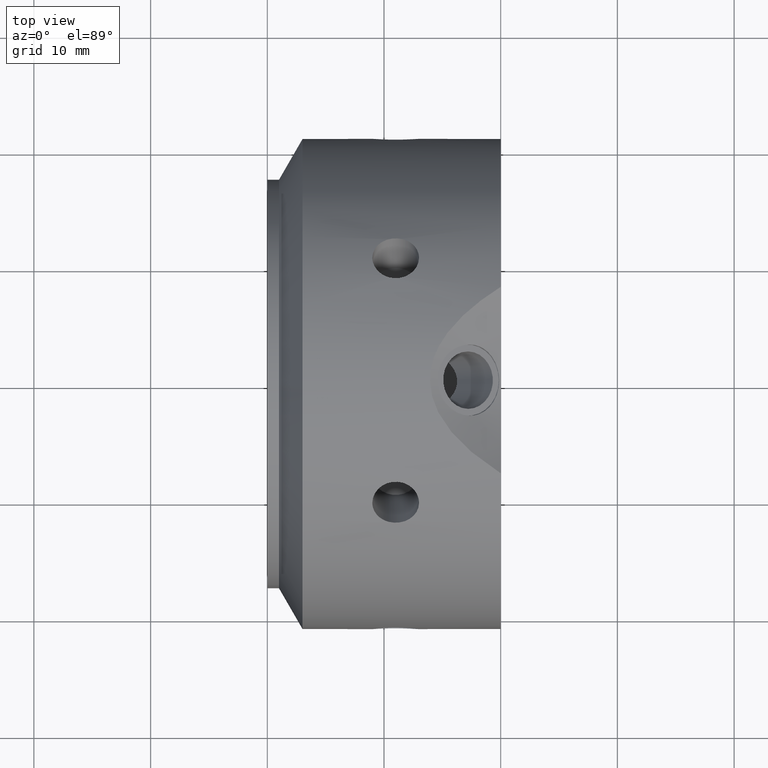
[diagram: clean part render]
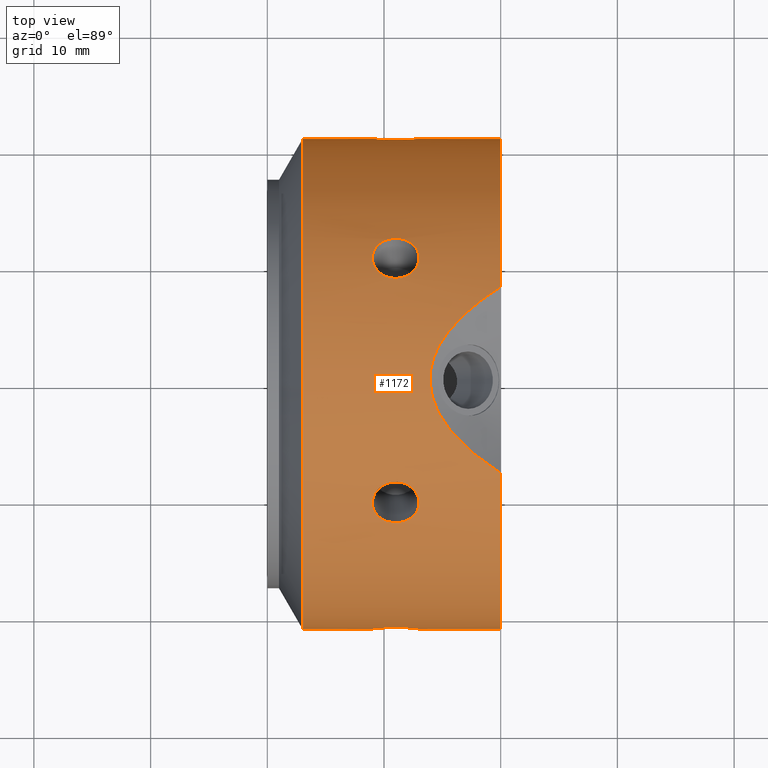
[diagram: same view with one face highlighted and labeled with its STEP entity id]
A machine part, top view. The second image highlights one B-rep face of the part: STEP entity #1172.
In plain terms, the highlighted cylindrical surface (bore or boss wall) has radius 21 mm, axis along (1, 0, 0).
Its self-contained STEP definition (entity closure, byte-faithful):
#90=CARTESIAN_POINT('',(9.000000000000002,10.500000000000014,18.186533479473198));
#91=VERTEX_POINT('',#90);
#92=CARTESIAN_POINT('',(13.0,10.500000000000018,18.186533479473198));
#93=VERTEX_POINT('',#92);
#94=CARTESIAN_POINT('',(9.0,10.500000000000016,18.186533479473198));
#95=CARTESIAN_POINT('',(9.0,10.717621442878064,18.06088968084612));
#96=CARTESIAN_POINT('',(9.050251048169601,10.947172488924004,17.922616635046939));
#97=CARTESIAN_POINT('',(9.254405905243905,11.364888168896423,17.660693345922247));
#98=CARTESIAN_POINT('',(9.408301305668548,11.553191491278197,17.537257791636765));
#99=CARTESIAN_POINT('',(9.763272066160816,11.848625504550405,17.339022991923677));
#100=CARTESIAN_POINT('',(9.988065085971465,11.975516503749708,17.25101462264989));
#101=CARTESIAN_POINT('',(10.480778392240556,12.143303375181798,17.133320875475675));
#102=CARTESIAN_POINT('',(10.74871169968258,12.18432328775233,17.103866990231651));
#103=CARTESIAN_POINT('',(11.251288300317421,12.184323287752331,17.103866990231651));
#104=CARTESIAN_POINT('',(11.519221607759446,12.143303375181798,17.133320875475675));
#105=CARTESIAN_POINT('',(12.011934914028537,11.975516503749706,17.25101462264989));
#106=CARTESIAN_POINT('',(12.236727933839187,11.848625504550409,17.339022991923674));
#107=CARTESIAN_POINT('',(12.591698694331455,11.553191491278199,17.537257791636765));
#108=CARTESIAN_POINT('',(12.745594094756097,11.36488816889643,17.660693345922244));
#109=CARTESIAN_POINT('',(12.949748951830403,10.947172488924007,17.922616635046936));
#110=CARTESIAN_POINT('',(13.0,10.717621442878064,18.06088968084612));
#111=CARTESIAN_POINT('',(13.0,10.500000000000016,18.186533479473198));
#112=B_SPLINE_CURVE_WITH_KNOTS('',3,(#94,#95,#96,#97,#98,#99,#100,#101,#102,#103,#104,#105,#106,#107,#108,#109,#110,#111),.UNSPECIFIED.,.F.,.U.,(4,2,2,2,2,2,2,2,4),(0.301545538542943,0.376931817719189,0.452318096895434,0.52770458699066,0.603091077085887,0.678477567181113,0.753864057276339,0.829250336452585,0.90463661562883),.UNSPECIFIED.);
#113=EDGE_CURVE('',#91,#93,#112,.T.);
#115=CARTESIAN_POINT('',(13.0,10.500000000000016,18.186533479473198));
#116=CARTESIAN_POINT('',(13.0,10.282378557121968,18.312177278100272));
#117=CARTESIAN_POINT('',(12.949748951830403,10.047855063778259,18.441837792541754));
#118=CARTESIAN_POINT('',(12.745594094756097,9.612165001567291,18.672628538394619));
#119=CARTESIAN_POINT('',(12.591698694331455,9.411115014634964,18.773986222051505));
#120=CARTESIAN_POINT('',(12.236727933839187,9.091721635533203,18.930722182830682));
#121=CARTESIAN_POINT('',(12.011934914028533,8.952058652396817,18.996608827011976));
#122=CARTESIAN_POINT('',(11.519221607759446,8.766239441761321,19.083069646506569));
#123=CARTESIAN_POINT('',(11.251288300317421,8.720221672614576,19.103866990231655));
#124=CARTESIAN_POINT('',(11.0,8.720221672614576,19.103866990231655));
#125=CARTESIAN_POINT('',(10.74871169968258,8.720221672614576,19.103866990231655));
#126=CARTESIAN_POINT('',(10.480778392240556,8.76623944176132,19.083069646506573));
#127=CARTESIAN_POINT('',(9.988065085971469,8.952058652396817,18.996608827011979));
#128=CARTESIAN_POINT('',(9.763272066160816,9.091721635533203,18.930722182830682));
#129=CARTESIAN_POINT('',(9.408301305668548,9.411115014634962,18.773986222051505));
#130=CARTESIAN_POINT('',(9.254405905243905,9.612165001567291,18.672628538394619));
#131=CARTESIAN_POINT('',(9.050251048169603,10.047855063778259,18.441837792541754));
#132=CARTESIAN_POINT('',(9.0,10.282378557121971,18.312177278100272));
#133=CARTESIAN_POINT('',(9.0,10.500000000000021,18.186533479473194));
#134=B_SPLINE_CURVE_WITH_KNOTS('',3,(#115,#116,#117,#118,#119,#120,#121,#122,#123,#124,#125,#126,#127,#128,#129,#130,#131,#132,#133),.UNSPECIFIED.,.F.,.U.,(4,2,2,2,3,2,2,2,4),(0.90463661562883,0.980022894805076,1.055409173981321,1.130795664076548,1.206182154171774,1.281568644267,1.356955134362226,1.432341413538472,1.507727692714717),.UNSPECIFIED.);
#135=EDGE_CURVE('',#93,#91,#134,.T.);
#202=CARTESIAN_POINT('',(9.000000000000002,20.999999999999996,-1.398881E-014));
#203=VERTEX_POINT('',#202);
#204=CARTESIAN_POINT('',(13.0,20.999999999999996,-1.554312E-014));
#205=VERTEX_POINT('',#204);
#206=CARTESIAN_POINT('',(9.000000000000002,20.999999999999996,-1.693090E-014));
#207=CARTESIAN_POINT('',(9.000000000000002,20.999999999999996,-0.251287597254168));
#208=CARTESIAN_POINT('',(9.050251048169601,20.995027552702222,-0.519221157494833));
#209=CARTESIAN_POINT('',(9.254405905243905,20.977053170463677,-1.011935192472388));
#210=CARTESIAN_POINT('',(9.408301305668548,20.964306505913122,-1.236728430414754));
#211=CARTESIAN_POINT('',(9.763272066160816,20.940347140083571,-1.591699190907022));
#212=CARTESIAN_POINT('',(9.988065085971467,20.927575156146482,-1.745594204362096));
#213=CARTESIAN_POINT('',(10.480778392240556,20.909542816943073,-1.949748771030906));
#214=CARTESIAN_POINT('',(10.74871169968258,20.904544960366866,-2.000000000000017));
#215=CARTESIAN_POINT('',(11.251288300317421,20.904544960366866,-2.000000000000017));
#216=CARTESIAN_POINT('',(11.519221607759446,20.909542816943073,-1.949748771030906));
#217=CARTESIAN_POINT('',(12.011934914028535,20.927575156146482,-1.745594204362096));
#218=CARTESIAN_POINT('',(12.236727933839187,20.940347140083571,-1.591699190907022));
#219=CARTESIAN_POINT('',(12.591698694331455,20.964306505913122,-1.236728430414755));
#220=CARTESIAN_POINT('',(12.745594094756097,20.977053170463677,-1.011935192472388));
#221=CARTESIAN_POINT('',(12.949748951830403,20.995027552702222,-0.519221157494834));
#222=CARTESIAN_POINT('',(13.0,20.999999999999996,-0.25128759725417));
#223=CARTESIAN_POINT('',(13.0,20.999999999999996,-1.790235E-014));
#224=B_SPLINE_CURVE_WITH_KNOTS('',3,(#206,#207,#208,#209,#210,#211,#212,#213,#214,#215,#216,#217,#218,#219,#220,#221,#222,#223),.UNSPECIFIED.,.F.,.U.,(4,2,2,2,2,2,2,2,4),(0.301545538542943,0.376931817719189,0.452318096895434,0.527704586990661,0.603091077085887,0.678477567181113,0.753864057276339,0.829250336452585,0.90463661562883),.UNSPECIFIED.);
#225=EDGE_CURVE('',#203,#205,#224,.T.);
#227=CARTESIAN_POINT('',(13.0,20.999999999999996,-1.769418E-014));
#228=CARTESIAN_POINT('',(13.0,20.999999999999996,0.251287597254134));
#229=CARTESIAN_POINT('',(12.949748951830401,20.995027552702222,0.519221157494798));
#230=CARTESIAN_POINT('',(12.745594094756097,20.977053170463677,1.011935192472352));
#231=CARTESIAN_POINT('',(12.591698694331455,20.964306505913122,1.236728430414719));
#232=CARTESIAN_POINT('',(12.236727933839187,20.940347140083571,1.591699190906987));
#233=CARTESIAN_POINT('',(12.011934914028533,20.927575156146482,1.745594204362062));
#234=CARTESIAN_POINT('',(11.519221607759446,20.909542816943073,1.949748771030871));
#235=CARTESIAN_POINT('',(11.251288300317421,20.904544960366866,1.999999999999983));
#236=CARTESIAN_POINT('',(11.0,20.904544960366866,1.999999999999983));
#237=CARTESIAN_POINT('',(10.74871169968258,20.904544960366866,1.999999999999983));
#238=CARTESIAN_POINT('',(10.480778392240556,20.909542816943073,1.949748771030871));
#239=CARTESIAN_POINT('',(9.988065085971467,20.927575156146482,1.745594204362062));
#240=CARTESIAN_POINT('',(9.763272066160816,20.940347140083571,1.591699190906987));
#241=CARTESIAN_POINT('',(9.408301305668548,20.964306505913122,1.23672843041472));
#242=CARTESIAN_POINT('',(9.254405905243907,20.977053170463677,1.011935192472354));
#243=CARTESIAN_POINT('',(9.050251048169601,20.995027552702222,0.519221157494799));
#244=CARTESIAN_POINT('',(9.000000000000002,20.999999999999996,0.251287597254135));
#245=CARTESIAN_POINT('',(9.000000000000002,20.999999999999996,-1.693090E-014));
#246=B_SPLINE_CURVE_WITH_KNOTS('',3,(#227,#228,#229,#230,#231,#232,#233,#234,#235,#236,#237,#238,#239,#240,#241,#242,#243,#244,#245),.UNSPECIFIED.,.F.,.U.,(4,2,2,2,3,2,2,2,4),(0.90463661562883,0.980022894805076,1.055409173981321,1.130795664076548,1.206182154171774,1.281568644267,1.356955134362226,1.432341413538472,1.507727692714717),.UNSPECIFIED.);
#247=EDGE_CURVE('',#205,#203,#246,.T.);
#314=CARTESIAN_POINT('',(9.000000000000002,10.499999999999991,-18.186533479473212));
#315=VERTEX_POINT('',#314);
#316=CARTESIAN_POINT('',(13.0,10.499999999999993,-18.186533479473212));
#317=VERTEX_POINT('',#316);
#318=CARTESIAN_POINT('',(9.000000000000002,10.499999999999991,-18.186533479473212));
#319=CARTESIAN_POINT('',(9.000000000000002,10.282378557121943,-18.312177278100286));
#320=CARTESIAN_POINT('',(9.050251048169603,10.047855063778231,-18.441837792541769));
#321=CARTESIAN_POINT('',(9.254405905243905,9.612165001567263,-18.67262853839463));
#322=CARTESIAN_POINT('',(9.408301305668548,9.411115014634937,-18.773986222051516));
#323=CARTESIAN_POINT('',(9.763272066160816,9.091721635533176,-18.930722182830696));
#324=CARTESIAN_POINT('',(9.988065085971465,8.95205865239679,-18.996608827011986));
#325=CARTESIAN_POINT('',(10.480778392240556,8.766239441761293,-19.08306964650658));
#326=CARTESIAN_POINT('',(10.74871169968258,8.720221672614549,-19.103866990231673));
#327=CARTESIAN_POINT('',(11.251288300317421,8.720221672614549,-19.103866990231673));
#328=CARTESIAN_POINT('',(11.519221607759446,8.766239441761293,-19.08306964650658));
#329=CARTESIAN_POINT('',(12.011934914028537,8.95205865239679,-18.996608827011986));
#330=CARTESIAN_POINT('',(12.236727933839187,9.091721635533176,-18.930722182830696));
#331=CARTESIAN_POINT('',(12.591698694331455,9.411115014634936,-18.773986222051519));
#332=CARTESIAN_POINT('',(12.745594094756097,9.612165001567261,-18.672628538394633));
#333=CARTESIAN_POINT('',(12.949748951830403,10.047855063778231,-18.441837792541769));
#334=CARTESIAN_POINT('',(13.0,10.282378557121943,-18.312177278100286));
#335=CARTESIAN_POINT('',(13.0,10.499999999999991,-18.186533479473212));
#336=B_SPLINE_CURVE_WITH_KNOTS('',3,(#318,#319,#320,#321,#322,#323,#324,#325,#326,#327,#328,#329,#330,#331,#332,#333,#334,#335),.UNSPECIFIED.,.F.,.U.,(4,2,2,2,2,2,2,2,4),(0.301545538542943,0.376931817719189,0.452318096895434,0.52770458699066,0.603091077085887,0.678477567181113,0.753864057276339,0.829250336452585,0.90463661562883),.UNSPECIFIED.);
#337=EDGE_CURVE('',#315,#317,#336,.T.);
#339=CARTESIAN_POINT('',(13.0,10.499999999999989,-18.186533479473212));
#340=CARTESIAN_POINT('',(13.0,10.717621442878038,-18.060889680846135));
#341=CARTESIAN_POINT('',(12.949748951830403,10.947172488923977,-17.922616635046957));
#342=CARTESIAN_POINT('',(12.745594094756097,11.364888168896401,-17.660693345922262));
#343=CARTESIAN_POINT('',(12.591698694331455,11.553191491278172,-17.537257791636783));
#344=CARTESIAN_POINT('',(12.236727933839187,11.848625504550384,-17.339022991923695));
#345=CARTESIAN_POINT('',(12.011934914028535,11.975516503749679,-17.251014622649908));
#346=CARTESIAN_POINT('',(11.519221607759448,12.14330337518177,-17.133320875475697));
#347=CARTESIAN_POINT('',(11.251288300317421,12.184323287752303,-17.103866990231673));
#348=CARTESIAN_POINT('',(11.0,12.184323287752303,-17.103866990231673));
#349=CARTESIAN_POINT('',(10.74871169968258,12.184323287752303,-17.103866990231673));
#350=CARTESIAN_POINT('',(10.480778392240556,12.143303375181771,-17.133320875475697));
#351=CARTESIAN_POINT('',(9.988065085971467,11.975516503749681,-17.251014622649908));
#352=CARTESIAN_POINT('',(9.763272066160816,11.848625504550384,-17.339022991923695));
#353=CARTESIAN_POINT('',(9.408301305668548,11.553191491278172,-17.537257791636783));
#354=CARTESIAN_POINT('',(9.254405905243907,11.364888168896403,-17.660693345922262));
#355=CARTESIAN_POINT('',(9.050251048169601,10.947172488923979,-17.922616635046957));
#356=CARTESIAN_POINT('',(9.000000000000002,10.717621442878041,-18.060889680846138));
#357=CARTESIAN_POINT('',(9.000000000000002,10.499999999999991,-18.186533479473212));
#358=B_SPLINE_CURVE_WITH_KNOTS('',3,(#339,#340,#341,#342,#343,#344,#345,#346,#347,#348,#349,#350,#351,#352,#353,#354,#355,#356,#357),.UNSPECIFIED.,.F.,.U.,(4,2,2,2,3,2,2,2,4),(0.90463661562883,0.980022894805076,1.055409173981321,1.130795664076548,1.206182154171774,1.281568644267,1.356955134362226,1.432341413538472,1.507727692714717),.UNSPECIFIED.);
#359=EDGE_CURVE('',#317,#315,#358,.T.);
#426=CARTESIAN_POINT('',(9.000000000000002,-10.500000000000005,-18.186533479473205));
#427=VERTEX_POINT('',#426);
#428=CARTESIAN_POINT('',(13.0,-10.500000000000007,-18.186533479473205));
#429=VERTEX_POINT('',#428);
#430=CARTESIAN_POINT('',(9.0,-10.500000000000007,-18.186533479473201));
#431=CARTESIAN_POINT('',(9.0,-10.717621442878054,-18.060889680846127));
#432=CARTESIAN_POINT('',(9.050251048169599,-10.947172488923991,-17.922616635046943));
#433=CARTESIAN_POINT('',(9.254405905243901,-11.364888168896414,-17.660693345922251));
#434=CARTESIAN_POINT('',(9.408301305668548,-11.553191491278184,-17.537257791636772));
#435=CARTESIAN_POINT('',(9.763272066160816,-11.848625504550396,-17.339022991923681));
#436=CARTESIAN_POINT('',(9.988065085971467,-11.975516503749697,-17.251014622649897));
#437=CARTESIAN_POINT('',(10.480778392240556,-12.143303375181787,-17.133320875475682));
#438=CARTESIAN_POINT('',(10.74871169968258,-12.184323287752319,-17.103866990231662));
#439=CARTESIAN_POINT('',(11.251288300317421,-12.184323287752319,-17.103866990231662));
#440=CARTESIAN_POINT('',(11.519221607759448,-12.143303375181784,-17.133320875475682));
#441=CARTESIAN_POINT('',(12.01193491402854,-11.975516503749695,-17.251014622649901));
#442=CARTESIAN_POINT('',(12.236727933839189,-11.848625504550396,-17.339022991923681));
#443=CARTESIAN_POINT('',(12.591698694331455,-11.553191491278184,-17.537257791636772));
#444=CARTESIAN_POINT('',(12.745594094756097,-11.364888168896414,-17.660693345922251));
#445=CARTESIAN_POINT('',(12.949748951830401,-10.947172488923991,-17.922616635046943));
#446=CARTESIAN_POINT('',(13.0,-10.717621442878054,-18.060889680846127));
#447=CARTESIAN_POINT('',(13.0,-10.500000000000007,-18.186533479473205));
#448=B_SPLINE_CURVE_WITH_KNOTS('',3,(#430,#431,#432,#433,#434,#435,#436,#437,#438,#439,#440,#441,#442,#443,#444,#445,#446,#447),.UNSPECIFIED.,.F.,.U.,(4,2,2,2,2,2,2,2,4),(0.301545538542943,0.376931817719189,0.452318096895434,0.52770458699066,0.603091077085887,0.678477567181113,0.75386405727634,0.829250336452585,0.90463661562883),.UNSPECIFIED.);
#449=EDGE_CURVE('',#427,#429,#448,.T.);
#451=CARTESIAN_POINT('',(13.0,-10.500000000000007,-18.186533479473201));
#452=CARTESIAN_POINT('',(13.0,-10.282378557121961,-18.312177278100275));
#453=CARTESIAN_POINT('',(12.949748951830403,-10.047855063778249,-18.441837792541762));
#454=CARTESIAN_POINT('',(12.745594094756097,-9.612165001567277,-18.672628538394626));
#455=CARTESIAN_POINT('',(12.591698694331455,-9.411115014634952,-18.773986222051509));
#456=CARTESIAN_POINT('',(12.236727933839187,-9.09172163553319,-18.930722182830685));
#457=CARTESIAN_POINT('',(12.011934914028533,-8.952058652396806,-18.996608827011979));
#458=CARTESIAN_POINT('',(11.519221607759446,-8.766239441761311,-19.083069646506573));
#459=CARTESIAN_POINT('',(11.251288300317421,-8.720221672614565,-19.103866990231666));
#460=CARTESIAN_POINT('',(11.0,-8.720221672614565,-19.103866990231666));
#461=CARTESIAN_POINT('',(10.74871169968258,-8.720221672614565,-19.103866990231666));
#462=CARTESIAN_POINT('',(10.480778392240556,-8.766239441761311,-19.083069646506573));
#463=CARTESIAN_POINT('',(9.988065085971469,-8.952058652396808,-18.996608827011979));
#464=CARTESIAN_POINT('',(9.763272066160816,-9.091721635533192,-18.930722182830685));
#465=CARTESIAN_POINT('',(9.408301305668548,-9.411115014634953,-18.773986222051509));
#466=CARTESIAN_POINT('',(9.254405905243905,-9.612165001567279,-18.672628538394626));
#467=CARTESIAN_POINT('',(9.050251048169599,-10.047855063778249,-18.441837792541762));
#468=CARTESIAN_POINT('',(9.0,-10.282378557121961,-18.312177278100279));
#469=CARTESIAN_POINT('',(9.0,-10.500000000000007,-18.186533479473205));
#470=B_SPLINE_CURVE_WITH_KNOTS('',3,(#451,#452,#453,#454,#455,#456,#457,#458,#459,#460,#461,#462,#463,#464,#465,#466,#467,#468,#469),.UNSPECIFIED.,.F.,.U.,(4,2,2,2,3,2,2,2,4),(0.90463661562883,0.980022894805076,1.055409173981321,1.130795664076548,1.206182154171774,1.281568644267,1.356955134362226,1.432341413538472,1.507727692714717),.UNSPECIFIED.);
#471=EDGE_CURVE('',#429,#427,#470,.T.);
#538=CARTESIAN_POINT('',(9.000000000000002,-20.999999999999996,5.828671E-015));
#539=VERTEX_POINT('',#538);
#540=CARTESIAN_POINT('',(13.0,-20.999999999999996,7.771561E-015));
#541=VERTEX_POINT('',#540);
#542=CARTESIAN_POINT('',(9.000000000000002,-20.999999999999996,8.326673E-015));
#543=CARTESIAN_POINT('',(9.000000000000002,-20.999999999999996,0.25128759725416));
#544=CARTESIAN_POINT('',(9.050251048169601,-20.995027552702222,0.519221157494825));
#545=CARTESIAN_POINT('',(9.254405905243905,-20.977053170463677,1.011935192472379));
#546=CARTESIAN_POINT('',(9.408301305668548,-20.964306505913122,1.236728430414745));
#547=CARTESIAN_POINT('',(9.763272066160816,-20.940347140083571,1.591699190907013));
#548=CARTESIAN_POINT('',(9.988065085971467,-20.927575156146482,1.745594204362087));
#549=CARTESIAN_POINT('',(10.480778392240556,-20.909542816943073,1.949748771030897));
#550=CARTESIAN_POINT('',(10.74871169968258,-20.904544960366866,2.000000000000009));
#551=CARTESIAN_POINT('',(11.251288300317421,-20.904544960366866,2.000000000000009));
#552=CARTESIAN_POINT('',(11.519221607759446,-20.909542816943073,1.949748771030897));
#553=CARTESIAN_POINT('',(12.011934914028535,-20.927575156146482,1.745594204362087));
#554=CARTESIAN_POINT('',(12.236727933839187,-20.940347140083571,1.591699190907013));
#555=CARTESIAN_POINT('',(12.591698694331455,-20.964306505913122,1.236728430414746));
#556=CARTESIAN_POINT('',(12.745594094756097,-20.977053170463677,1.011935192472379));
#557=CARTESIAN_POINT('',(12.949748951830403,-20.995027552702222,0.519221157494825));
#558=CARTESIAN_POINT('',(13.0,-20.999999999999996,0.251287597254161));
#559=CARTESIAN_POINT('',(13.0,-20.999999999999996,9.159340E-015));
#560=B_SPLINE_CURVE_WITH_KNOTS('',3,(#542,#543,#544,#545,#546,#547,#548,#549,#550,#551,#552,#553,#554,#555,#556,#557,#558,#559),.UNSPECIFIED.,.F.,.U.,(4,2,2,2,2,2,2,2,4),(0.301545538542943,0.376931817719189,0.452318096895434,0.527704586990661,0.603091077085887,0.678477567181113,0.753864057276339,0.829250336452585,0.90463661562883),.UNSPECIFIED.);
#561=EDGE_CURVE('',#539,#541,#560,.T.);
#563=CARTESIAN_POINT('',(13.0,-20.999999999999996,8.604228E-015));
#564=CARTESIAN_POINT('',(13.0,-20.999999999999996,-0.251287597254143));
#565=CARTESIAN_POINT('',(12.949748951830403,-20.995027552702222,-0.519221157494807));
#566=CARTESIAN_POINT('',(12.745594094756097,-20.977053170463677,-1.011935192472361));
#567=CARTESIAN_POINT('',(12.591698694331455,-20.964306505913122,-1.236728430414728));
#568=CARTESIAN_POINT('',(12.236727933839187,-20.940347140083571,-1.591699190906995));
#569=CARTESIAN_POINT('',(12.011934914028533,-20.927575156146482,-1.745594204362071));
#570=CARTESIAN_POINT('',(11.519221607759446,-20.909542816943073,-1.94974877103088));
#571=CARTESIAN_POINT('',(11.251288300317421,-20.904544960366866,-1.999999999999992));
#572=CARTESIAN_POINT('',(11.0,-20.904544960366866,-1.999999999999992));
#573=CARTESIAN_POINT('',(10.74871169968258,-20.904544960366866,-1.999999999999992));
#574=CARTESIAN_POINT('',(10.480778392240556,-20.909542816943073,-1.94974877103088));
#575=CARTESIAN_POINT('',(9.988065085971469,-20.927575156146482,-1.745594204362071));
#576=CARTESIAN_POINT('',(9.763272066160816,-20.940347140083571,-1.591699190906996));
#577=CARTESIAN_POINT('',(9.408301305668548,-20.964306505913122,-1.236728430414729));
#578=CARTESIAN_POINT('',(9.254405905243907,-20.977053170463677,-1.011935192472362));
#579=CARTESIAN_POINT('',(9.050251048169603,-20.995027552702222,-0.519221157494808));
#580=CARTESIAN_POINT('',(9.000000000000002,-20.999999999999996,-0.251287597254143));
#581=CARTESIAN_POINT('',(9.000000000000002,-20.999999999999996,8.257284E-015));
#582=B_SPLINE_CURVE_WITH_KNOTS('',3,(#563,#564,#565,#566,#567,#568,#569,#570,#571,#572,#573,#574,#575,#576,#577,#578,#579,#580,#581),.UNSPECIFIED.,.F.,.U.,(4,2,2,2,3,2,2,2,4),(0.90463661562883,0.980022894805076,1.055409173981321,1.130795664076548,1.206182154171774,1.281568644267,1.356955134362226,1.432341413538472,1.507727692714717),.UNSPECIFIED.);
#583=EDGE_CURVE('',#541,#539,#582,.T.);
#687=CARTESIAN_POINT('',(9.000000000000002,-10.499999999999996,18.186533479473212));
#688=VERTEX_POINT('',#687);
#689=CARTESIAN_POINT('',(13.0,-10.499999999999993,18.186533479473212));
#690=VERTEX_POINT('',#689);
#691=CARTESIAN_POINT('',(9.000000000000002,-10.499999999999993,18.186533479473209));
#692=CARTESIAN_POINT('',(9.000000000000002,-10.282378557121948,18.312177278100283));
#693=CARTESIAN_POINT('',(9.050251048169601,-10.047855063778234,18.441837792541765));
#694=CARTESIAN_POINT('',(9.254405905243907,-9.612165001567263,18.67262853839463));
#695=CARTESIAN_POINT('',(9.408301305668548,-9.411115014634937,18.773986222051516));
#696=CARTESIAN_POINT('',(9.763272066160816,-9.091721635533176,18.930722182830696));
#697=CARTESIAN_POINT('',(9.988065085971467,-8.952058652396794,18.99660882701199));
#698=CARTESIAN_POINT('',(10.480778392240556,-8.766239441761295,19.083069646506583));
#699=CARTESIAN_POINT('',(10.74871169968258,-8.720221672614553,19.103866990231669));
#700=CARTESIAN_POINT('',(11.251288300317421,-8.720221672614553,19.103866990231669));
#701=CARTESIAN_POINT('',(11.519221607759448,-8.766239441761295,19.083069646506583));
#702=CARTESIAN_POINT('',(12.011934914028537,-8.952058652396794,18.996608827011986));
#703=CARTESIAN_POINT('',(12.236727933839187,-9.091721635533178,18.930722182830696));
#704=CARTESIAN_POINT('',(12.591698694331455,-9.411115014634937,18.773986222051519));
#705=CARTESIAN_POINT('',(12.745594094756097,-9.612165001567265,18.67262853839463));
#706=CARTESIAN_POINT('',(12.949748951830403,-10.047855063778234,18.441837792541765));
#707=CARTESIAN_POINT('',(13.0,-10.282378557121943,18.312177278100286));
#708=CARTESIAN_POINT('',(13.0,-10.499999999999989,18.186533479473212));
#709=B_SPLINE_CURVE_WITH_KNOTS('',3,(#691,#692,#693,#694,#695,#696,#697,#698,#699,#700,#701,#702,#703,#704,#705,#706,#707,#708),.UNSPECIFIED.,.F.,.U.,(4,2,2,2,2,2,2,2,4),(0.301545538542943,0.376931817719189,0.452318096895434,0.527704586990661,0.603091077085887,0.678477567181113,0.753864057276339,0.829250336452585,0.90463661562883),.UNSPECIFIED.);
#710=EDGE_CURVE('',#688,#690,#709,.T.);
#712=CARTESIAN_POINT('',(13.0,-10.499999999999991,18.186533479473212));
#713=CARTESIAN_POINT('',(13.0,-10.717621442878038,18.060889680846138));
#714=CARTESIAN_POINT('',(12.949748951830403,-10.947172488923979,17.92261663504695));
#715=CARTESIAN_POINT('',(12.745594094756099,-11.364888168896401,17.660693345922262));
#716=CARTESIAN_POINT('',(12.591698694331457,-11.553191491278172,17.53725779163678));
#717=CARTESIAN_POINT('',(12.236727933839187,-11.848625504550384,17.339022991923688));
#718=CARTESIAN_POINT('',(12.011934914028535,-11.975516503749684,17.251014622649908));
#719=CARTESIAN_POINT('',(11.519221607759446,-12.143303375181773,17.133320875475697));
#720=CARTESIAN_POINT('',(11.251288300317421,-12.184323287752306,17.103866990231673));
#721=CARTESIAN_POINT('',(11.0,-12.184323287752306,17.103866990231673));
#722=CARTESIAN_POINT('',(10.74871169968258,-12.184323287752306,17.103866990231673));
#723=CARTESIAN_POINT('',(10.480778392240556,-12.143303375181773,17.133320875475697));
#724=CARTESIAN_POINT('',(9.988065085971469,-11.975516503749684,17.251014622649908));
#725=CARTESIAN_POINT('',(9.763272066160816,-11.848625504550384,17.339022991923688));
#726=CARTESIAN_POINT('',(9.408301305668548,-11.553191491278174,17.537257791636776));
#727=CARTESIAN_POINT('',(9.254405905243907,-11.364888168896403,17.660693345922258));
#728=CARTESIAN_POINT('',(9.050251048169603,-10.947172488923982,17.92261663504695));
#729=CARTESIAN_POINT('',(9.0,-10.717621442878041,18.060889680846135));
#730=CARTESIAN_POINT('',(9.0,-10.499999999999993,18.186533479473212));
#731=B_SPLINE_CURVE_WITH_KNOTS('',3,(#712,#713,#714,#715,#716,#717,#718,#719,#720,#721,#722,#723,#724,#725,#726,#727,#728,#729,#730),.UNSPECIFIED.,.F.,.U.,(4,2,2,2,3,2,2,2,4),(0.90463661562883,0.980022894805076,1.055409173981321,1.130795664076548,1.206182154171774,1.281568644267,1.356955134362226,1.432341413538472,1.507727692714717),.UNSPECIFIED.);
#732=EDGE_CURVE('',#690,#688,#731,.T.);
#873=CARTESIAN_POINT('',(19.999999999999989,12.825946575204799,-16.628141641506197));
#874=VERTEX_POINT('',#873);
#875=CARTESIAN_POINT('',(19.999999999999993,20.813366366872636,-2.793524740956303));
#876=VERTEX_POINT('',#875);
#884=CARTESIAN_POINT('',(19.999999999999993,20.813366366872632,-2.793524740956301));
#885=CARTESIAN_POINT('',(19.276101325229014,20.747614619673111,-3.283413082971539));
#886=CARTESIAN_POINT('',(18.580191157214902,20.661818347476611,-3.793849042113704));
#887=CARTESIAN_POINT('',(16.926662111941507,20.375949083859737,-5.149388394490532));
#888=CARTESIAN_POINT('',(15.914584449123923,20.119566629582902,-6.120811105575632));
#889=CARTESIAN_POINT('',(14.79062471562294,19.543887234676692,-7.704012220535192));
#890=CARTESIAN_POINT('',(14.481145148582982,19.31998010580698,-8.253290859230679));
#891=CARTESIAN_POINT('',(14.054521821548533,18.803719239529894,-9.370089867132819));
#892=CARTESIAN_POINT('',(13.937822173508929,18.511180750828665,-9.937694431473751));
#893=CARTESIAN_POINT('',(13.937822173508929,17.861886208117745,-11.062305568526266));
#894=CARTESIAN_POINT('',(14.054521821548541,17.516595480445112,-11.599453613496699));
#895=CARTESIAN_POINT('',(14.481145148582987,16.80754960181914,-12.604948142623488));
#896=CARTESIAN_POINT('',(14.790624715622943,16.443813911387572,-13.07349672366084));
#897=CARTESIAN_POINT('',(15.914584449123927,15.360561223985847,-14.363650261564654));
#898=CARTESIAN_POINT('',(16.926662111941507,14.647475705511415,-15.071395335595543));
#899=CARTESIAN_POINT('',(18.580191157214902,13.616478822332015,-15.996735056237316));
#900=CARTESIAN_POINT('',(19.276101325229007,13.217326450808077,-16.326254787080568));
#901=CARTESIAN_POINT('',(19.999999999999993,12.825946575204801,-16.62814164150619));
#902=B_SPLINE_CURVE_WITH_KNOTS('',3,(#884,#885,#886,#887,#888,#889,#890,#891,#892,#893,#894,#895,#896,#897,#898,#899,#900,#901),.UNSPECIFIED.,.F.,.U.,(4,2,2,2,2,2,2,2,4),(2.118422259520242,2.375995425940131,2.765572151566684,2.960360514379961,3.155148877193237,3.349937240006514,3.54472560281979,3.934302328446344,4.191875494866232),.UNSPECIFIED.);
#903=EDGE_CURVE('',#876,#874,#902,.T.);
#1044=CARTESIAN_POINT('',(19.999999999999989,-20.813366366872636,-2.793524740956287));
#1045=VERTEX_POINT('',#1044);
#1046=CARTESIAN_POINT('',(19.999999999999993,-12.825946575204814,-16.628141641506183));
#1047=VERTEX_POINT('',#1046);
#1055=CARTESIAN_POINT('',(19.999999999999993,-12.825946575204812,-16.628141641506179));
#1056=CARTESIAN_POINT('',(19.242981110150318,-13.235233080712547,-16.312442691691423));
#1057=CARTESIAN_POINT('',(18.516763824993554,-13.652872808994726,-15.96667833108455));
#1058=CARTESIAN_POINT('',(16.857239610333128,-14.695790907494503,-15.023873186967515));
#1059=CARTESIAN_POINT('',(15.866621362706821,-15.399876509381228,-14.320556404916582));
#1060=CARTESIAN_POINT('',(14.768554613516734,-16.468760699492066,-13.041800672305593));
#1061=CARTESIAN_POINT('',(14.466634422991511,-16.827576454034396,-12.577831533607824));
#1062=CARTESIAN_POINT('',(14.051039733898376,-17.526652307428748,-11.583852310964298));
#1063=CARTESIAN_POINT('',(13.937822173508929,-17.866891341232272,-11.053636423673264));
#1064=CARTESIAN_POINT('',(13.937822173508929,-18.506175617714156,-9.946363576326725));
#1065=CARTESIAN_POINT('',(14.051039733898381,-18.795236528696538,-9.386599986048283));
#1066=CARTESIAN_POINT('',(14.466634422991515,-19.306509859642563,-8.284192926514729));
#1067=CARTESIAN_POINT('',(14.768554613516734,-19.528911043055651,-7.741464798454103));
#1068=CARTESIAN_POINT('',(15.866621362706821,-20.10190389767633,-6.176406069809064));
#1069=CARTESIAN_POINT('',(16.857239610333131,-20.358951296896997,-5.214991661110837));
#1070=CARTESIAN_POINT('',(18.516763824993557,-20.653985453271105,-3.84039552168495));
#1071=CARTESIAN_POINT('',(19.242981110150314,-20.744606309138852,-3.305826727059525));
#1072=CARTESIAN_POINT('',(19.999999999999989,-20.813366366872632,-2.793524740956288));
#1073=B_SPLINE_CURVE_WITH_KNOTS('',3,(#1055,#1056,#1057,#1058,#1059,#1060,#1061,#1062,#1063,#1064,#1065,#1066,#1067,#1068,#1069,#1070,#1071,#1072),.UNSPECIFIED.,.F.,.U.,(4,2,2,2,2,2,2,2,4),(2.052412130844741,2.321338483499798,2.70490904938893,2.896694332333496,3.088479615278062,3.280264898222629,3.472050181167194,3.855620747056326,4.124547099711383),.UNSPECIFIED.);
#1074=EDGE_CURVE('',#1047,#1045,#1073,.T.);
#1082=CARTESIAN_POINT('',(11.510362971081838,0.0,0.0));
#1083=DIRECTION('',(1.0,0.0,0.0));
#1084=DIRECTION('',(0.0,1.0,0.0));
#1085=AXIS2_PLACEMENT_3D('',#1082,#1083,#1084);
#1086=CYLINDRICAL_SURFACE('',#1085,20.999999999999996);
#1087=CARTESIAN_POINT('',(3.020725942163684,20.999999999999996,0.0));
#1088=VERTEX_POINT('',#1087);
#1089=CARTESIAN_POINT('',(3.020725942163684,0.0,0.0));
#1090=DIRECTION('',(1.0,0.0,0.0));
#1091=DIRECTION('',(0.0,1.0,0.0));
#1092=AXIS2_PLACEMENT_3D('',#1089,#1090,#1091);
#1093=CIRCLE('',#1092,20.999999999999996);
#1094=EDGE_CURVE('',#1088,#1088,#1093,.T.);
#1095=ORIENTED_EDGE('',*,*,#1094,.T.);
#1096=EDGE_LOOP('',(#1095));
#1097=FACE_OUTER_BOUND('',#1096,.T.);
#1098=ORIENTED_EDGE('',*,*,#113,.T.);
#1099=ORIENTED_EDGE('',*,*,#135,.T.);
#1100=EDGE_LOOP('',(#1098,#1099));
#1101=FACE_BOUND('',#1100,.T.);
#1102=ORIENTED_EDGE('',*,*,#225,.T.);
#1103=ORIENTED_EDGE('',*,*,#247,.T.);
#1104=EDGE_LOOP('',(#1102,#1103));
#1105=FACE_BOUND('',#1104,.T.);
#1106=ORIENTED_EDGE('',*,*,#337,.T.);
#1107=ORIENTED_EDGE('',*,*,#359,.T.);
#1108=EDGE_LOOP('',(#1106,#1107));
#1109=FACE_BOUND('',#1108,.T.);
#1110=ORIENTED_EDGE('',*,*,#449,.T.);
#1111=ORIENTED_EDGE('',*,*,#471,.T.);
#1112=EDGE_LOOP('',(#1110,#1111));
#1113=FACE_BOUND('',#1112,.T.);
#1114=ORIENTED_EDGE('',*,*,#561,.T.);
#1115=ORIENTED_EDGE('',*,*,#583,.T.);
#1116=EDGE_LOOP('',(#1114,#1115));
#1117=FACE_BOUND('',#1116,.T.);
#1118=ORIENTED_EDGE('',*,*,#710,.T.);
#1119=ORIENTED_EDGE('',*,*,#732,.T.);
#1120=EDGE_LOOP('',(#1118,#1119));
#1121=FACE_BOUND('',#1120,.T.);
#1122=ORIENTED_EDGE('',*,*,#903,.T.);
#1123=CARTESIAN_POINT('',(19.999999999999993,0.0,0.0));
#1124=DIRECTION('',(1.0,0.0,0.0));
#1125=DIRECTION('',(0.0,1.0,0.0));
#1126=AXIS2_PLACEMENT_3D('',#1123,#1124,#1125);
#1127=CIRCLE('',#1126,21.0);
#1128=EDGE_CURVE('',#1047,#874,#1127,.T.);
#1129=ORIENTED_EDGE('',*,*,#1128,.F.);
#1130=ORIENTED_EDGE('',*,*,#1074,.T.);
#1131=CARTESIAN_POINT('',(19.999999999999993,-7.98741979166783,19.421666382462476));
#1132=VERTEX_POINT('',#1131);
#1133=CARTESIAN_POINT('',(19.999999999999993,0.0,0.0));
#1134=DIRECTION('',(1.0,0.0,0.0));
#1135=DIRECTION('',(0.0,1.0,0.0));
#1136=AXIS2_PLACEMENT_3D('',#1133,#1134,#1135);
#1137=CIRCLE('',#1136,21.0);
#1138=EDGE_CURVE('',#1132,#1045,#1137,.T.);
#1139=ORIENTED_EDGE('',*,*,#1138,.F.);
#1140=CARTESIAN_POINT('',(19.999999999999993,7.98741979166783,19.421666382462476));
#1141=VERTEX_POINT('',#1140);
#1142=CARTESIAN_POINT('',(19.999999999999989,-7.98741979166783,19.421666382462469));
#1143=CARTESIAN_POINT('',(19.930899773304336,-7.943783990323921,19.439612188780838));
#1144=CARTESIAN_POINT('',(19.862072735106967,-7.899898611230587,19.457488715069143));
#1145=CARTESIAN_POINT('',(18.649890196573306,-7.119300698949179,19.772358958690464));
#1146=CARTESIAN_POINT('',(17.583131817444478,-6.315607285659349,20.049912910199346));
#1147=CARTESIAN_POINT('',(15.944983680415138,-4.714216881771686,20.47654381732508));
#1148=CARTESIAN_POINT('',(15.24258561625539,-3.879785744543147,20.659646680643434));
#1149=CARTESIAN_POINT('',(14.23416090321918,-2.028884244030196,20.922652666150128));
#1150=CARTESIAN_POINT('',(13.93782217350893,-1.006790285125996,20.999999999999996));
#1151=CARTESIAN_POINT('',(13.93782217350893,1.006790285125997,20.999999999999996));
#1152=CARTESIAN_POINT('',(14.234160903219173,2.028884244030204,20.922652666150125));
#1153=CARTESIAN_POINT('',(15.242585616255386,3.879785744543156,20.65964668064343));
#1154=CARTESIAN_POINT('',(15.944983680415138,4.714216881771687,20.47654381732508));
#1155=CARTESIAN_POINT('',(17.583131817444475,6.315607285659349,20.049912910199346));
#1156=CARTESIAN_POINT('',(18.649890196573303,7.119300698949175,19.772358958690464));
#1157=CARTESIAN_POINT('',(19.862072735106963,7.899898611230583,19.457488715069147));
#1158=CARTESIAN_POINT('',(19.930899773304333,7.943783990323921,19.439612188780838));
#1159=CARTESIAN_POINT('',(19.999999999999989,7.98741979166783,19.421666382462469));
#1160=B_SPLINE_CURVE_WITH_KNOTS('',3,(#1142,#1143,#1144,#1145,#1146,#1147,#1148,#1149,#1150,#1151,#1152,#1153,#1154,#1155,#1156,#1157,#1158,#1159),.UNSPECIFIED.,.F.,.U.,(4,2,2,2,2,2,2,2,4),(1.167304111439444,1.191100112109172,1.588133482812229,1.890170568350028,2.192207653887827,2.494244739425626,2.796281824963424,3.193315195666481,3.21711119633621),.UNSPECIFIED.);
#1161=EDGE_CURVE('',#1132,#1141,#1160,.T.);
#1162=ORIENTED_EDGE('',*,*,#1161,.T.);
#1163=CARTESIAN_POINT('',(19.999999999999993,0.0,0.0));
#1164=DIRECTION('',(1.0,0.0,0.0));
#1165=DIRECTION('',(0.0,1.0,0.0));
#1166=AXIS2_PLACEMENT_3D('',#1163,#1164,#1165);
#1167=CIRCLE('',#1166,21.0);
#1168=EDGE_CURVE('',#876,#1141,#1167,.T.);
#1169=ORIENTED_EDGE('',*,*,#1168,.F.);
#1170=EDGE_LOOP('',(#1122,#1129,#1130,#1139,#1162,#1169));
#1171=FACE_BOUND('',#1170,.T.);
#1172=ADVANCED_FACE('',(#1097,#1101,#1105,#1109,#1113,#1117,#1121,#1171),#1086,.T.);